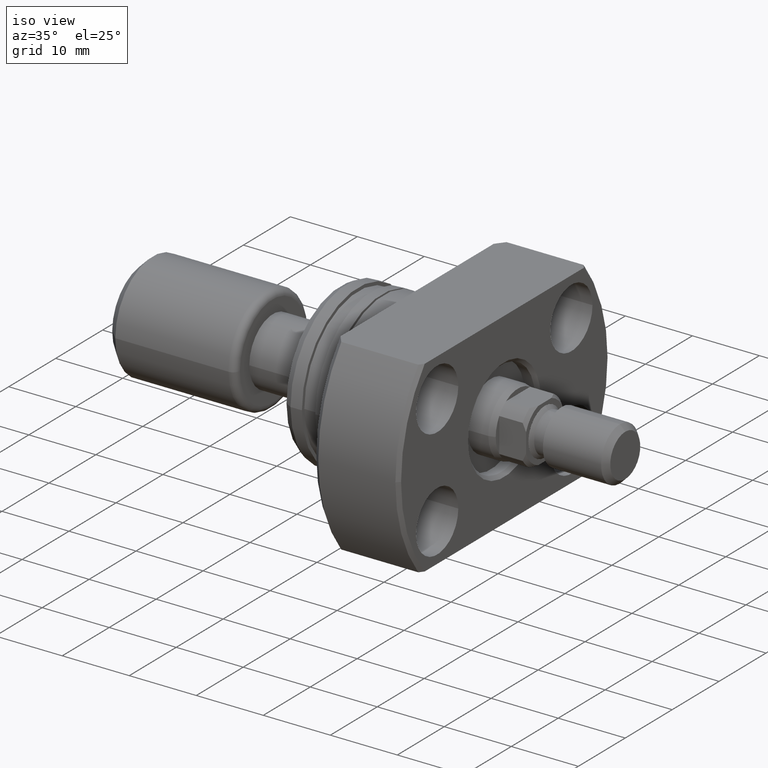
[diagram: clean part render]
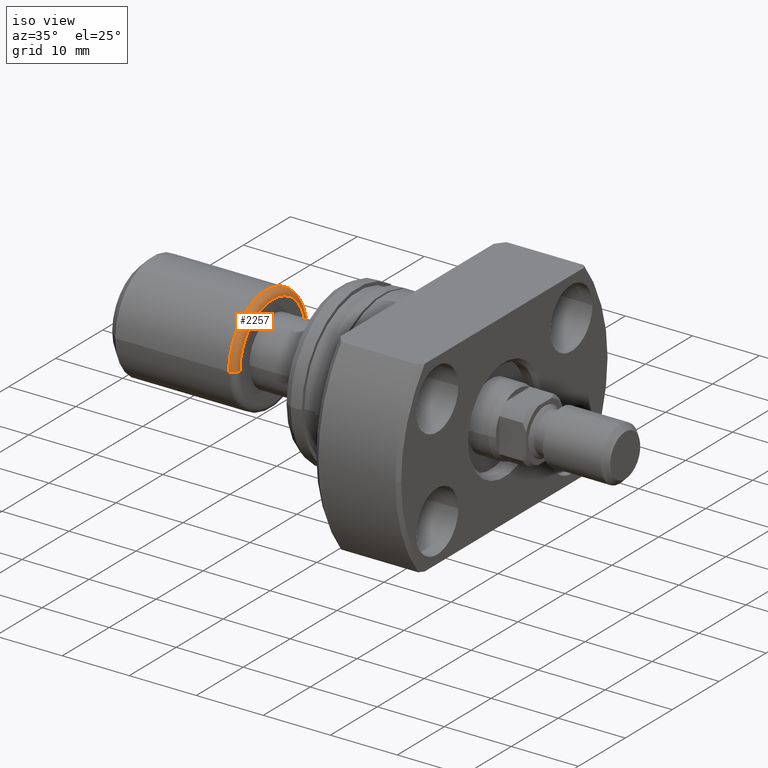
[diagram: same view with one face highlighted and labeled with its STEP entity id]
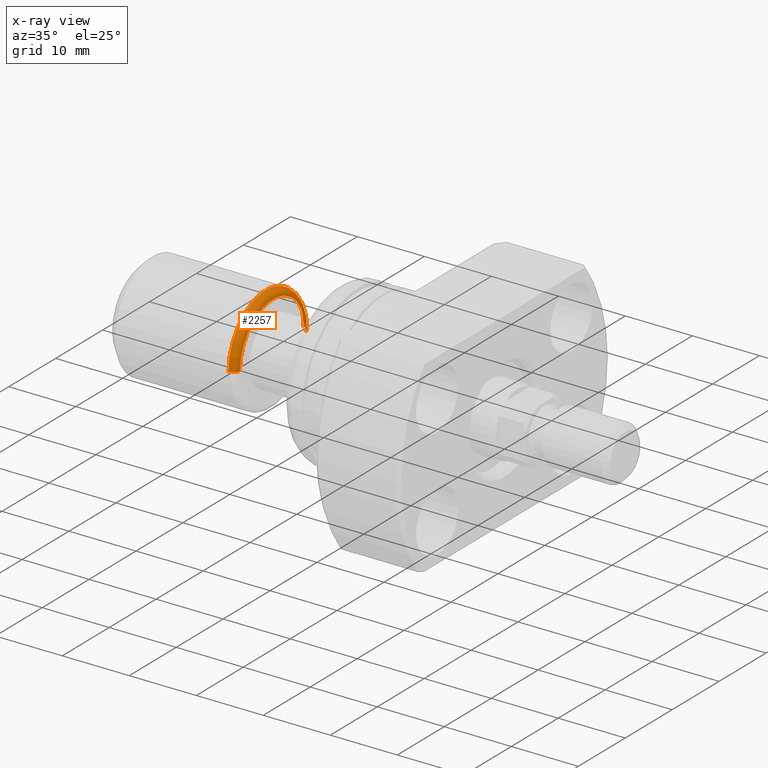
[diagram: x-ray of the same camera — body ghosted, the highlighted face saturated]
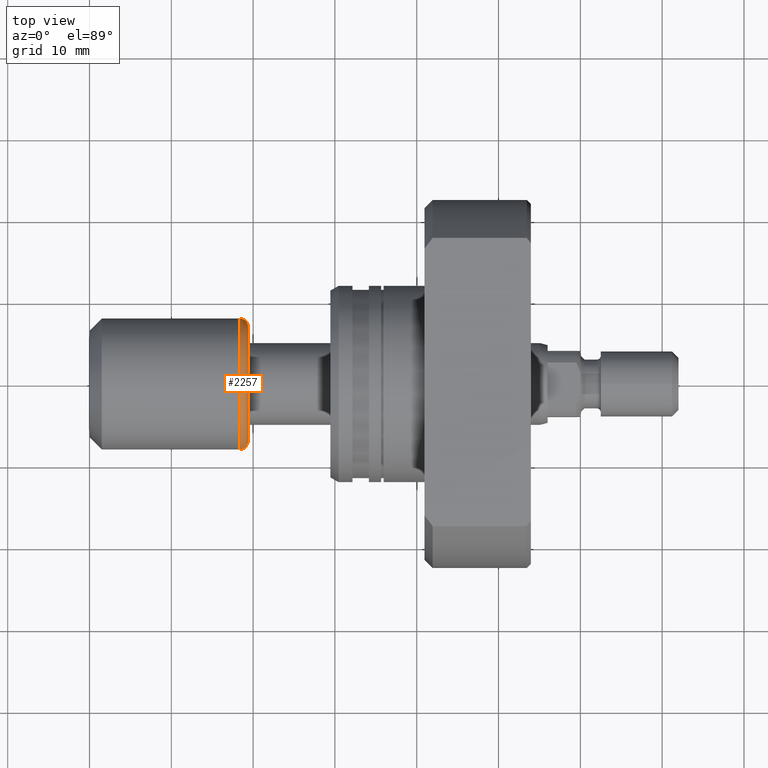
[diagram: same view with one face highlighted and labeled with its STEP entity id]
A machine part, iso view. The second image highlights one B-rep face of the part: STEP entity #2257.
The next image is the same camera in x-ray: the body ghosted, the highlighted face saturated — about 2% of this face is hidden behind the body in this view.
A second angle (top view) of the same face is appended — the face is thin or edge-on in the first view.
In plain terms, the highlighted toroidal blend (fillet) surface has major radius 7 mm and minor (blend) radius 1 mm.
Its self-contained STEP definition (entity closure, byte-faithful):
#16 = EDGE_LOOP ( 'NONE', ( #515, #3414, #3482, #338 ) ) ;
#68 = DIRECTION ( 'NONE',  ( 1.069542322069065801E-17, -1.000000000000000000, 0.000000000000000000 ) ) ;
#143 = CIRCLE ( 'NONE', #2203, 1.000000000000000000 ) ;
#269 = DIRECTION ( 'NONE',  ( -1.000000000000000000, -1.069542322069065801E-17, -0.000000000000000000 ) ) ;
#338 = ORIENTED_EDGE ( 'NONE', *, *, #2367, .F. ) ;
#470 = DIRECTION ( 'NONE',  ( 0.000000000000000000, -1.000000000000000000, 0.000000000000000000 ) ) ;
#482 = DIRECTION ( 'NONE',  ( 1.309811581274509052E-33, -1.224646799147353207E-16, 1.000000000000000000 ) ) ;
#515 = ORIENTED_EDGE ( 'NONE', *, *, #662, .T. ) ;
#644 = EDGE_CURVE ( 'NONE', #1883, #2115, #143, .T. ) ;
#662 = EDGE_CURVE ( 'NONE', #1139, #1883, #1852, .T. ) ;
#777 = DIRECTION ( 'NONE',  ( -1.000000000000000000, -1.069542322069065801E-17, -0.000000000000000000 ) ) ;
#927 = AXIS2_PLACEMENT_3D ( 'NONE', #3174, #269, #68 ) ;
#1073 = CARTESIAN_POINT ( 'NONE',  ( 18.40000000000006253, -7.999999999999996447, 0.000000000000000000 ) ) ;
#1139 = VERTEX_POINT ( 'NONE', #2139 ) ;
#1222 = CIRCLE ( 'NONE', #3464, 1.000000000000000888 ) ;
#1236 = DIRECTION ( 'NONE',  ( 0.000000000000000000, 0.000000000000000000, -1.000000000000000000 ) ) ;
#1306 = VERTEX_POINT ( 'NONE', #1073 ) ;
#1310 = CARTESIAN_POINT ( 'NONE',  ( 18.40000000000006253, 7.999999999999996447, 9.797174393178821713E-16 ) ) ;
#1439 = CARTESIAN_POINT ( 'NONE',  ( 19.40000000000006253, 6.999999999999996447, 9.184850993605144000E-16 ) ) ;
#1457 = CIRCLE ( 'NONE', #3407, 7.999999999999996447 ) ;
#1532 = CARTESIAN_POINT ( 'NONE',  ( 18.40000000000006253, -6.999999999999996447, 0.000000000000000000 ) ) ;
#1595 = CARTESIAN_POINT ( 'NONE',  ( 19.40000000000006253, 2.074912104813994331E-16, 0.000000000000000000 ) ) ;
#1660 = DIRECTION ( 'NONE',  ( 0.000000000000000000, -1.000000000000000000, 0.000000000000000000 ) ) ;
#1831 = CARTESIAN_POINT ( 'NONE',  ( 18.40000000000006253, 6.999999999999996447, 8.572527594031468259E-16 ) ) ;
#1852 = CIRCLE ( 'NONE', #2926, 6.999999999999996447 ) ;
#1883 = VERTEX_POINT ( 'NONE', #1439 ) ;
#1940 = DIRECTION ( 'NONE',  ( -1.000000000000000000, -1.069542322069065801E-17, -0.000000000000000000 ) ) ;
#2017 = FACE_OUTER_BOUND ( 'NONE', #16, .T. ) ;
#2115 = VERTEX_POINT ( 'NONE', #1310 ) ;
#2139 = CARTESIAN_POINT ( 'NONE',  ( 19.40000000000006253, -6.999999999999996447, 0.000000000000000000 ) ) ;
#2203 = AXIS2_PLACEMENT_3D ( 'NONE', #1831, #482, #3253 ) ;
#2257 = ADVANCED_FACE ( 'NONE', ( #2017 ), #2505, .T. ) ;
#2367 = EDGE_CURVE ( 'NONE', #1139, #1306, #1222, .T. ) ;
#2505 = TOROIDAL_SURFACE ( 'NONE', #927, 6.999999999999996447, 1.000000000000000444 ) ;
#2633 = DIRECTION ( 'NONE',  ( -1.000000000000000000, 0.000000000000000000, 0.000000000000000000 ) ) ;
#2730 = EDGE_CURVE ( 'NONE', #1306, #2115, #1457, .T. ) ;
#2818 = CARTESIAN_POINT ( 'NONE',  ( 18.40000000000006253, 1.967957872607087643E-16, 0.000000000000000000 ) ) ;
#2926 = AXIS2_PLACEMENT_3D ( 'NONE', #1595, #777, #470 ) ;
#3174 = CARTESIAN_POINT ( 'NONE',  ( 18.40000000000006253, 0.000000000000000000, 0.000000000000000000 ) ) ;
#3253 = DIRECTION ( 'NONE',  ( 0.000000000000000000, -1.000000000000000000, -1.224646799147353454E-16 ) ) ;
#3407 = AXIS2_PLACEMENT_3D ( 'NONE', #2818, #1940, #1660 ) ;
#3414 = ORIENTED_EDGE ( 'NONE', *, *, #644, .T. ) ;
#3464 = AXIS2_PLACEMENT_3D ( 'NONE', #1532, #1236, #2633 ) ;
#3482 = ORIENTED_EDGE ( 'NONE', *, *, #2730, .F. ) ;